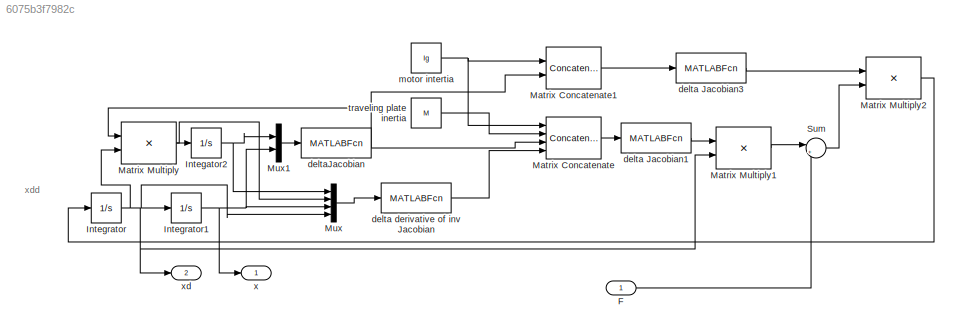
MODEL slx_6075b3f7982c
KIND model
CONFIG AbsTol = auto
CONFIG EnableMultiTasking = off
CONFIG FixedStep = auto
CONFIG MaxStep = auto
CONFIG MinStep = auto
CONFIG RelTol = 1e-3
CONFIG SampleTimeConstraint = Unconstrained
CONFIG Solver = VariableStepAuto
CONFIG SolverName = VariableStepAuto
CONFIG StartTime = 0.0
CONFIG StopTime = 10.0
BLOCK [Inport] F
  IconDisplay = Port number
  PortDimensions = 3
BLOCK [Integrator] Integator2
  InitialCondition = q0
  Ports = [1, 1]
BLOCK [Integrator] Integrator
  InitialCondition = xd0
  Ports = [1, 1]
BLOCK [Integrator] Integrator1
  InitialCondition = x0
  Ports = [1, 1]
BLOCK [Concatenate] Matrix Concatenate
  Mode = Multidimensional array
  NumInputs = 4
  Ports = [4, 1]
BLOCK [Concatenate] Matrix Concatenate1
  Mode = Multidimensional array
  Ports = [2, 1]
BLOCK [Product] Matrix Multiply
  InputSameDT = off
  Multiplication = Matrix(*)
  OutDataTypeStr = Inherit: Inherit via internal rule
  Ports = [2, 1]
  RndMeth = Floor
  SaturateOnIntegerOverflow = off
BLOCK [Product] Matrix Multiply1
  InputSameDT = off
  Multiplication = Matrix(*)
  OutDataTypeStr = Inherit: Inherit via internal rule
  Ports = [2, 1]
  RndMeth = Floor
  SaturateOnIntegerOverflow = off
BLOCK [Product] Matrix Multiply2
  InputSameDT = off
  Multiplication = Matrix(*)
  OutDataTypeStr = Inherit: Inherit via internal rule
  Ports = [2, 1]
  RndMeth = Floor
  SaturateOnIntegerOverflow = off
BLOCK [Mux] Mux
  DisplayOption = bar
  Ports = [4, 1]
BLOCK [Mux] Mux1
  DisplayOption = bar
  Inputs = 2
  Ports = [2, 1]
BLOCK [Sum] Sum
  IconShape = round
  InputSameDT = off
  Inputs = |+-
  OutDataTypeStr = Inherit: Inherit via internal rule
  Ports = [2, 1]
  SaturateOnIntegerOverflow = off
BLOCK [MATLABFcn] delta Jacobian1
  MATLABFcn = delta_nonlinearTerm(u)
  Output1D = off
  Ports = [1, 1]
BLOCK [MATLABFcn] delta Jacobian3
  MATLABFcn = delta_massMatrix(u)
  Output1D = off
  Ports = [1, 1]
BLOCK [MATLABFcn] delta derivative of inv Jacobian
  MATLABFcn = derivative_deltaInvJacobian(u)
  Output1D = off
  Ports = [1, 1]
BLOCK [MATLABFcn] deltaJacobian
  MATLABFcn = deltaJacobian(u)
  Output1D = off
  Ports = [1, 1]
BLOCK [Constant] motor intertia
  Value = Ig
BLOCK [Constant] traveling plate inertia
  Value = M
BLOCK [Outport] x
  IconDisplay = Port number
BLOCK [Outport] xd 
  IconDisplay = Port number
  Port = 2
ANNOTATION (root): xdd
LINE F:1 -> Sum:2
NET Integator2:1 -> Mux1:1, Mux:1
NET Integrator1:1 -> Mux1:2, Mux:3, x:1
NET Integrator:1 -> Integrator1:1, Matrix Multiply1:2, Matrix Multiply:2, Mux:4, xd :1
LINE Matrix Concatenate1:1 -> delta Jacobian3:1
LINE Matrix Concatenate:1 -> delta Jacobian1:1
LINE Matrix Multiply1:1 -> Sum:1
LINE Matrix Multiply2:1 -> Integrator:1
NET Matrix Multiply:1 -> Integator2:1, Mux:2
LINE Mux1:1 -> deltaJacobian:1
LINE Mux:1 -> delta derivative of inv Jacobian:1
LINE Sum:1 -> Matrix Multiply2:2
LINE delta Jacobian1:1 -> Matrix Multiply1:1
LINE delta Jacobian3:1 -> Matrix Multiply2:1
LINE delta derivative of inv Jacobian:1 -> Matrix Concatenate:4
NET deltaJacobian:1 -> Matrix Concatenate1:2, Matrix Concatenate:3, Matrix Multiply:1
NET motor intertia:1 -> Matrix Concatenate1:1, Matrix Concatenate:1
LINE traveling plate inertia:1 -> Matrix Concatenate:2
note: NET lines group one-source signal fan-out (src -> all destinations, sorted); 1:1 wires keep LINE
